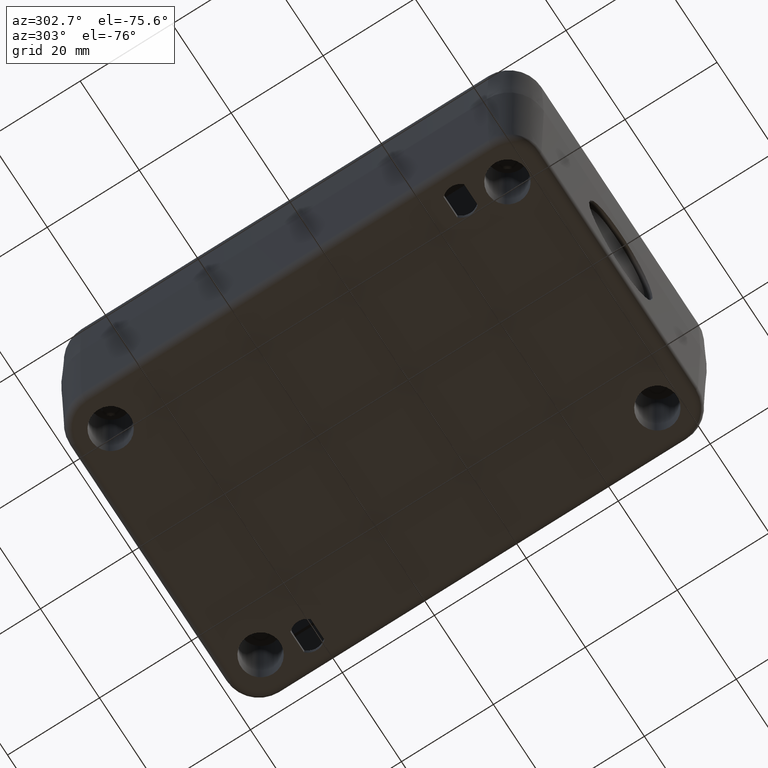
[diagram: clean part render]
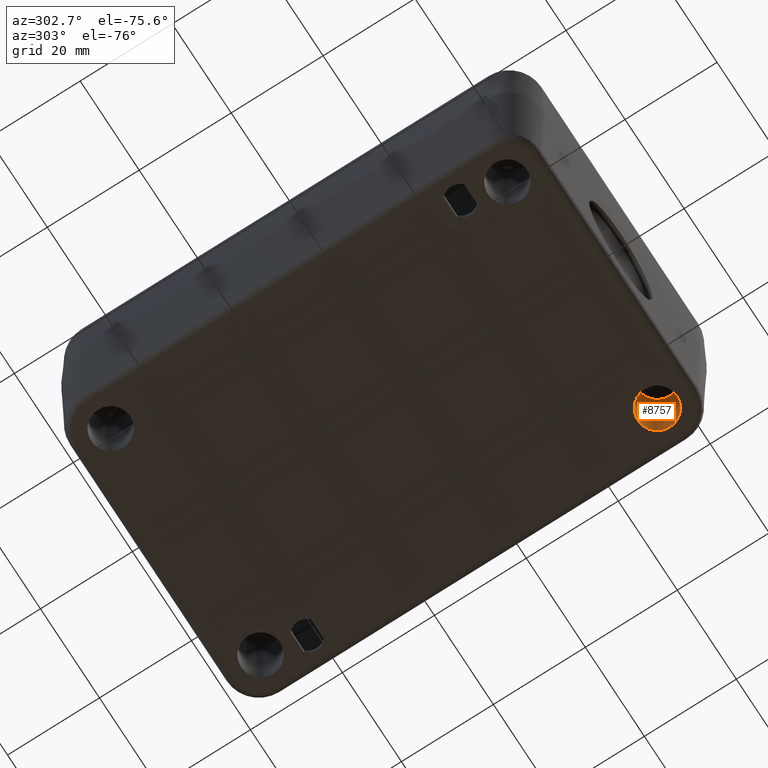
[diagram: same view with one face highlighted and labeled with its STEP entity id]
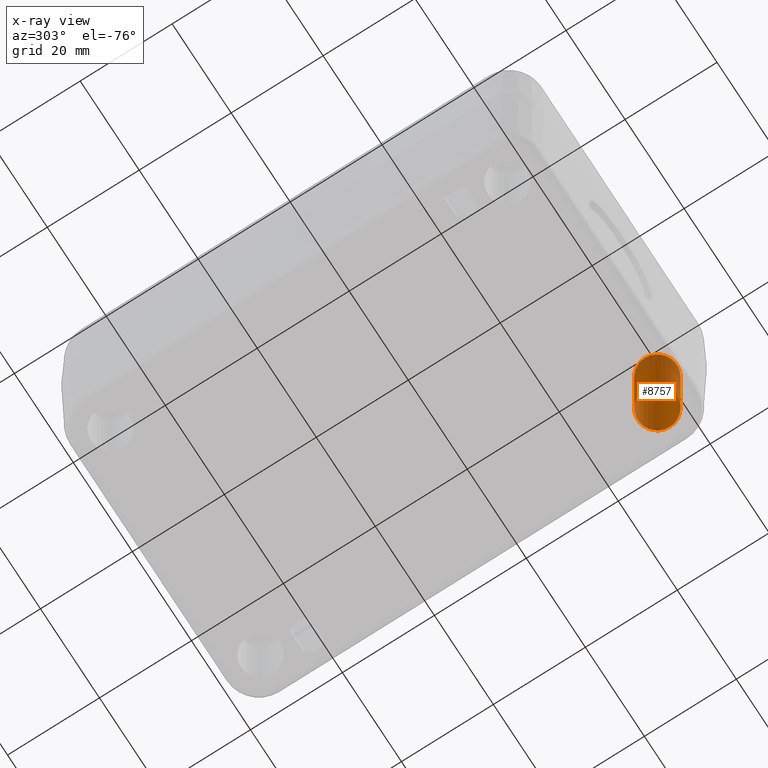
[diagram: x-ray of the same camera — body ghosted, the highlighted face saturated]
A machine part, auxiliary view. The second image highlights one B-rep face of the part: STEP entity #8757.
The next image is the same camera in x-ray: the body ghosted, the highlighted face saturated — about 19% of this face is hidden behind the body in this view.
In plain terms, the highlighted face is a freeform B-spline surface patch.
Its self-contained STEP definition (entity closure, byte-faithful):
#3399=CARTESIAN_POINT('',(5.277450702821486,-15.227564896536396,0.0));
#3400=VERTEX_POINT('',#3399);
#3401=CARTESIAN_POINT('',(9.527450702821486,-15.227564896536396,0.0));
#3402=DIRECTION('',(0.0,0.0,1.0));
#3403=DIRECTION('',(-1.0,0.0,0.0));
#3404=AXIS2_PLACEMENT_3D('',#3401,#3402,#3403);
#3405=CIRCLE('',#3404,4.250000000000000);
#3406=EDGE_CURVE('',#3400,#3400,#3405,.T.);
#8702=CARTESIAN_POINT('',(5.277450702821486,-15.227564896536396,23.000000000000004));
#8703=VERTEX_POINT('',#8702);
#8704=CARTESIAN_POINT('',(9.527450702821486,-15.227564896536396,23.000000000000004));
#8705=DIRECTION('',(0.0,0.0,-1.0));
#8706=DIRECTION('',(-1.0,0.0,0.0));
#8707=AXIS2_PLACEMENT_3D('',#8704,#8705,#8706);
#8708=CIRCLE('',#8707,4.250000000000000);
#8709=EDGE_CURVE('',#8703,#8703,#8708,.T.);
#8725=CARTESIAN_POINT('',(13.777450702821486,-15.227564896536396,0.0));
#8726=CARTESIAN_POINT('',(13.777450702821486,-15.227564896536396,23.000000000000004));
#8727=CARTESIAN_POINT('',(13.777450702821486,-19.477564896536396,0.0));
#8728=CARTESIAN_POINT('',(13.777450702821486,-19.477564896536396,23.000000000000004));
#8729=CARTESIAN_POINT('',(9.527450702821486,-19.477564896536396,0.0));
#8730=CARTESIAN_POINT('',(9.527450702821486,-19.477564896536396,23.000000000000004));
#8731=CARTESIAN_POINT('',(5.277450702821487,-19.477564896536396,0.0));
#8732=CARTESIAN_POINT('',(5.277450702821487,-19.477564896536396,23.000000000000004));
#8733=CARTESIAN_POINT('',(5.277450702821486,-15.227564896536396,0.0));
#8734=CARTESIAN_POINT('',(5.277450702821486,-15.227564896536396,23.000000000000004));
#8735=CARTESIAN_POINT('',(5.277450702821487,-10.977564896536396,0.0));
#8736=CARTESIAN_POINT('',(5.277450702821487,-10.977564896536396,23.000000000000004));
#8737=CARTESIAN_POINT('',(9.527450702821486,-10.977564896536396,0.0));
#8738=CARTESIAN_POINT('',(9.527450702821486,-10.977564896536396,23.000000000000004));
#8739=CARTESIAN_POINT('',(13.777450702821486,-10.977564896536396,0.0));
#8740=CARTESIAN_POINT('',(13.777450702821486,-10.977564896536396,23.000000000000004));
#8741=CARTESIAN_POINT('',(13.777450702821486,-15.227564896536396,0.0));
#8742=CARTESIAN_POINT('',(13.777450702821486,-15.227564896536396,23.000000000000004));
#8750=(BOUNDED_SURFACE()B_SPLINE_SURFACE(1,2,((#8725,#8727,#8729,#8731,#8733,#8735,#8737,#8739,#8741),(#8726,#8728,#8730,#8732,#8734,#8736,#8738,#8740,#8742)),.UNSPECIFIED.,.F.,.T.,.U.)B_SPLINE_SURFACE_WITH_KNOTS((2,2),(3,2,2,2,3),(-2.705882352941177,2.705882352941177),(0.0,6.675884388878311,13.351768777756622,20.027653166634931,26.703537555513243),.UNSPECIFIED.)GEOMETRIC_REPRESENTATION_ITEM()RATIONAL_B_SPLINE_SURFACE(((1.0,0.707106781186548,1.0,0.707106781186548,1.0,0.707106781186548,1.0,0.707106781186548,1.0),(1.0,0.707106781186548,1.0,0.707106781186548,1.0,0.707106781186548,1.0,0.707106781186548,1.0)))REPRESENTATION_ITEM('')SURFACE());
#8751=ORIENTED_EDGE('',*,*,#3406,.F.);
#8752=EDGE_LOOP('',(#8751));
#8753=FACE_OUTER_BOUND('',#8752,.T.);
#8754=ORIENTED_EDGE('',*,*,#8709,.F.);
#8755=EDGE_LOOP('',(#8754));
#8756=FACE_BOUND('',#8755,.T.);
#8757=ADVANCED_FACE('',(#8753,#8756),#8750,.F.);